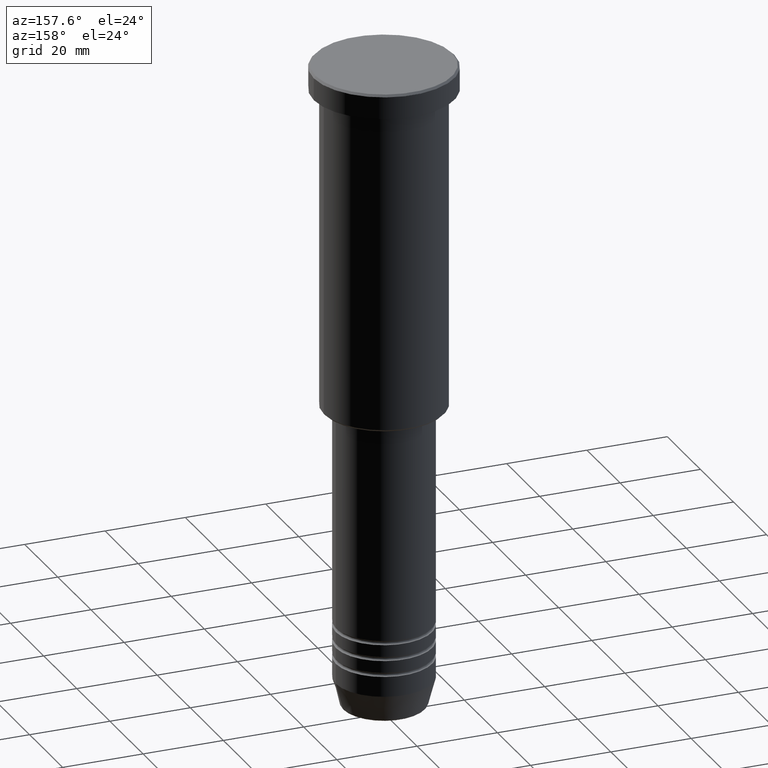
[diagram: clean part render]
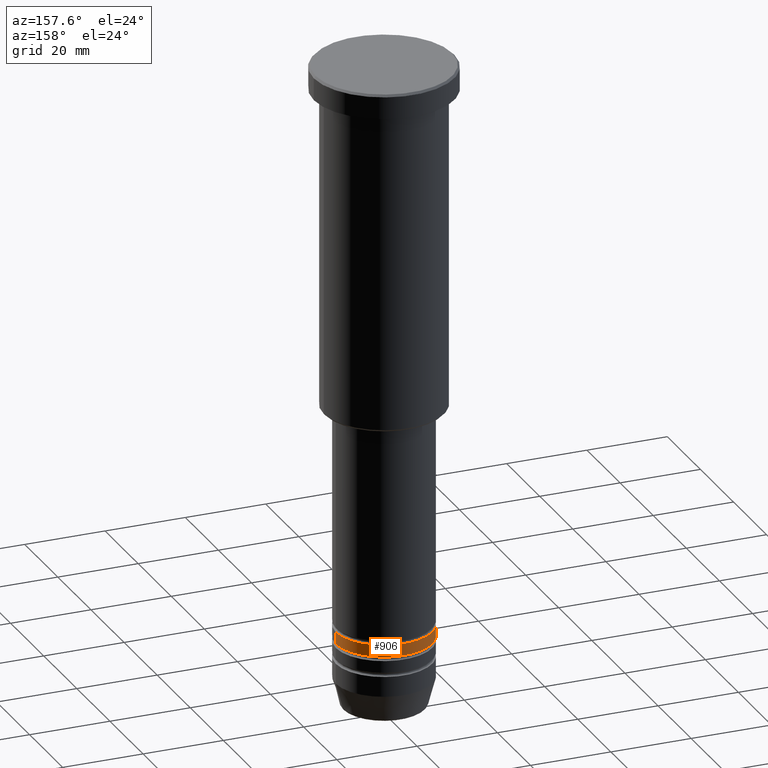
[diagram: same view with one face highlighted and labeled with its STEP entity id]
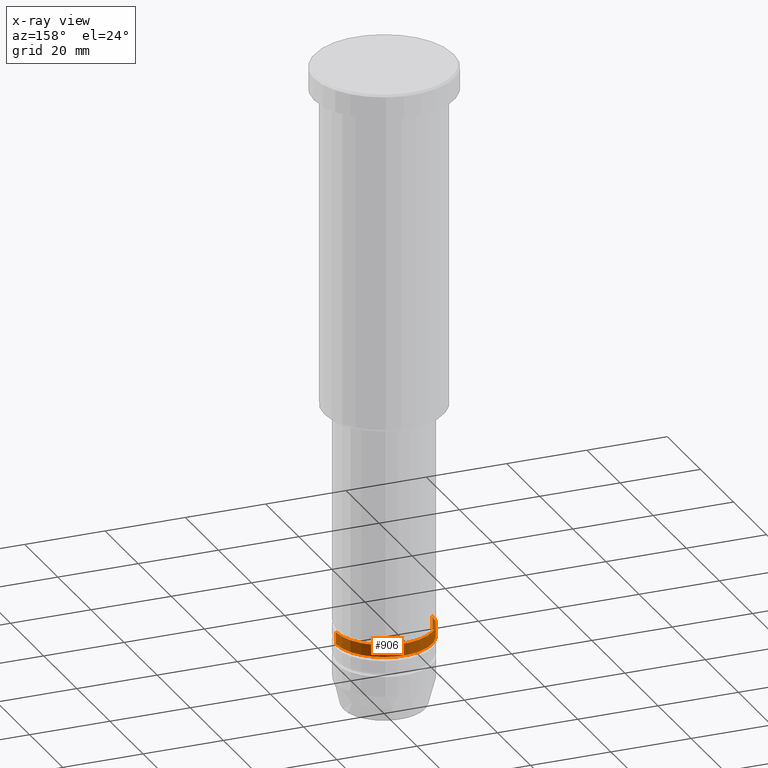
[diagram: x-ray of the same camera — body ghosted, the highlighted face saturated]
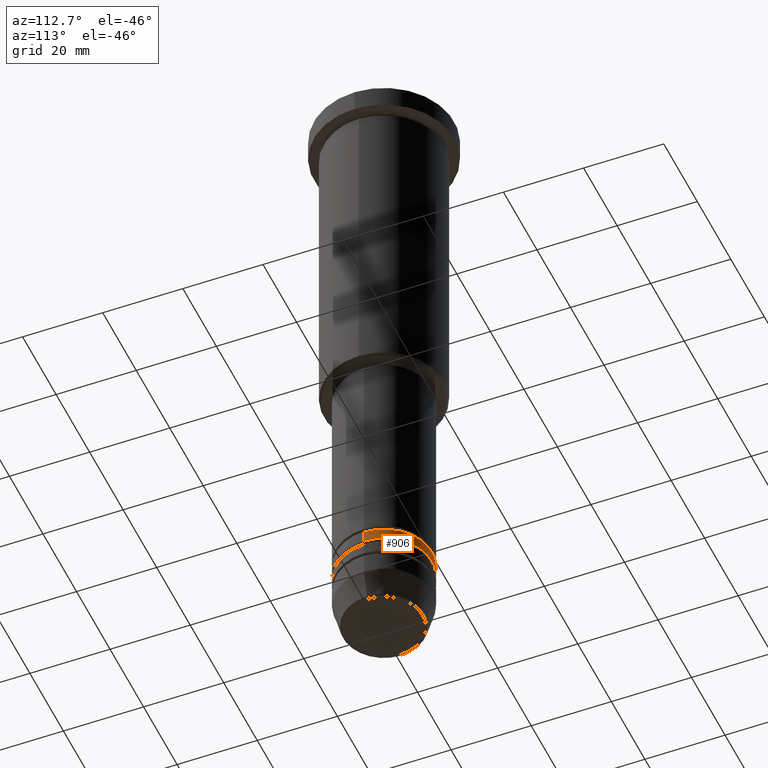
[diagram: same view with one face highlighted and labeled with its STEP entity id]
A machine part, auxiliary view. The second image highlights one B-rep face of the part: STEP entity #906.
The next image is the same camera in x-ray: the body ghosted, the highlighted face saturated — about 0% of this face is hidden behind the body in this view.
A second angle (auxiliary view) of the same face is appended — the face is thin or edge-on in the first view.
In plain terms, the highlighted cylindrical surface (partial cylindrical patch) has radius 12 mm, axis along (-0, -0, 1).
Its self-contained STEP definition (entity closure, byte-faithful):
#14 = DIRECTION ( 'NONE',  ( 1.000000000000000000, 0.000000000000000000, 0.000000000000000000 ) ) ;
#17 = DIRECTION ( 'NONE',  ( -0.000000000000000000, -0.000000000000000000, 1.000000000000000000 ) ) ;
#22 = CARTESIAN_POINT ( 'NONE',  ( 0.000000000000000000, 0.000000000000000000, 0.000000000000000000 ) ) ;
#33 = DIRECTION ( 'NONE',  ( -0.000000000000000000, -0.000000000000000000, 1.000000000000000000 ) ) ;
#38 = DIRECTION ( 'NONE',  ( -0.000000000000000000, -0.000000000000000000, 1.000000000000000000 ) ) ;
#48 = AXIS2_PLACEMENT_3D ( 'NONE', #22, #38, #14 ) ;
#132 = CARTESIAN_POINT ( 'NONE',  ( 12.00000000000000355, 0.000000000000000000, -143.9999999999998863 ) ) ;
#223 = VERTEX_POINT ( 'NONE', #506 ) ;
#226 = VECTOR ( 'NONE', #17, 1000.000000000000000 ) ;
#248 = LINE ( 'NONE', #924, #226 ) ;
#271 = LINE ( 'NONE', #732, #1054 ) ;
#287 = CIRCLE ( 'NONE', #463, 12.00000000000000000 ) ;
#288 = ORIENTED_EDGE ( 'NONE', *, *, #802, .T. ) ;
#350 = DIRECTION ( 'NONE',  ( -0.000000000000000000, -0.000000000000000000, 1.000000000000000000 ) ) ;
#356 = VERTEX_POINT ( 'NONE', #779 ) ;
#367 = VERTEX_POINT ( 'NONE', #591 ) ;
#375 = CARTESIAN_POINT ( 'NONE',  ( 0.000000000000000000, 0.000000000000000000, -143.9999999999998863 ) ) ;
#376 = ORIENTED_EDGE ( 'NONE', *, *, #975, .F. ) ;
#398 = DIRECTION ( 'NONE',  ( 1.000000000000000000, 0.000000000000000000, 0.000000000000000000 ) ) ;
#463 = AXIS2_PLACEMENT_3D ( 'NONE', #575, #33, #398 ) ;
#483 = DIRECTION ( 'NONE',  ( 1.000000000000000000, 0.000000000000000000, 0.000000000000000000 ) ) ;
#487 = CIRCLE ( 'NONE', #959, 12.00000000000000355 ) ;
#506 = CARTESIAN_POINT ( 'NONE',  ( -12.00000000000000000, 1.469576158976824144E-15, -140.9999999999998579 ) ) ;
#555 = EDGE_CURVE ( 'NONE', #639, #356, #248, .T. ) ;
#575 = CARTESIAN_POINT ( 'NONE',  ( 0.000000000000000000, 0.000000000000000000, -140.9999999999998579 ) ) ;
#591 = CARTESIAN_POINT ( 'NONE',  ( -12.00000000000000533, 1.469576158976824539E-15, -143.9999999999998863 ) ) ;
#639 = VERTEX_POINT ( 'NONE', #132 ) ;
#668 = DIRECTION ( 'NONE',  ( -0.000000000000000000, -0.000000000000000000, 1.000000000000000000 ) ) ;
#732 = CARTESIAN_POINT ( 'NONE',  ( -12.00000000000000178, 1.469576158976824144E-15, 0.000000000000000000 ) ) ;
#779 = CARTESIAN_POINT ( 'NONE',  ( 12.00000000000000000, 0.000000000000000000, -140.9999999999998579 ) ) ;
#802 = EDGE_CURVE ( 'NONE', #367, #223, #271, .T. ) ;
#826 = CYLINDRICAL_SURFACE ( 'NONE', #48, 12.00000000000000178 ) ;
#906 = ADVANCED_FACE ( 'NONE', ( #1043 ), #826, .T. ) ;
#917 = ORIENTED_EDGE ( 'NONE', *, *, #1140, .T. ) ;
#924 = CARTESIAN_POINT ( 'NONE',  ( 12.00000000000000178, 0.000000000000000000, 0.000000000000000000 ) ) ;
#959 = AXIS2_PLACEMENT_3D ( 'NONE', #375, #668, #483 ) ;
#975 = EDGE_CURVE ( 'NONE', #356, #223, #287, .T. ) ;
#1043 = FACE_OUTER_BOUND ( 'NONE', #1085, .T. ) ;
#1054 = VECTOR ( 'NONE', #350, 1000.000000000000000 ) ;
#1085 = EDGE_LOOP ( 'NONE', ( #917, #288, #376, #1096 ) ) ;
#1096 = ORIENTED_EDGE ( 'NONE', *, *, #555, .F. ) ;
#1140 = EDGE_CURVE ( 'NONE', #639, #367, #487, .T. ) ;